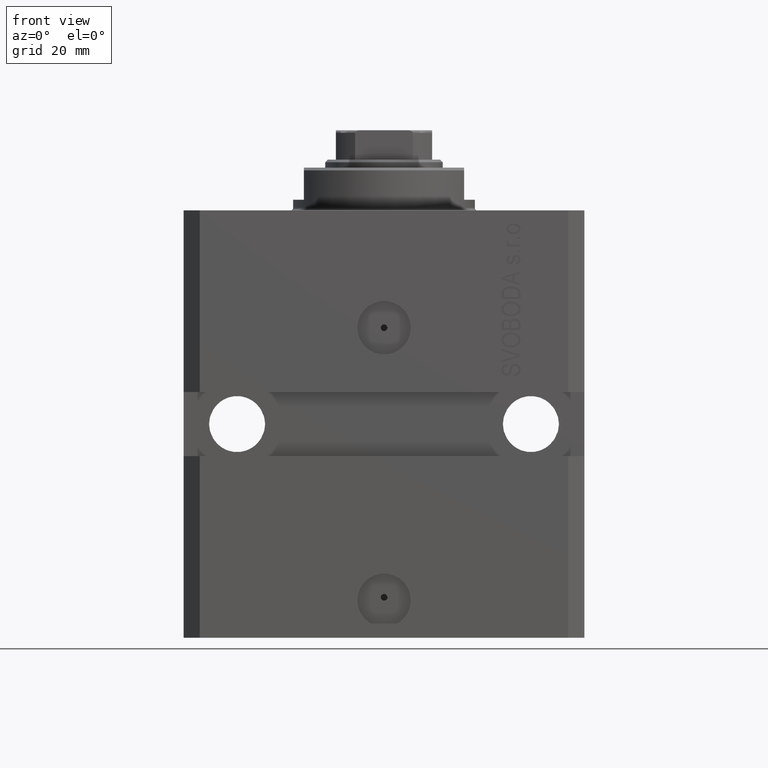
[diagram: clean part render]
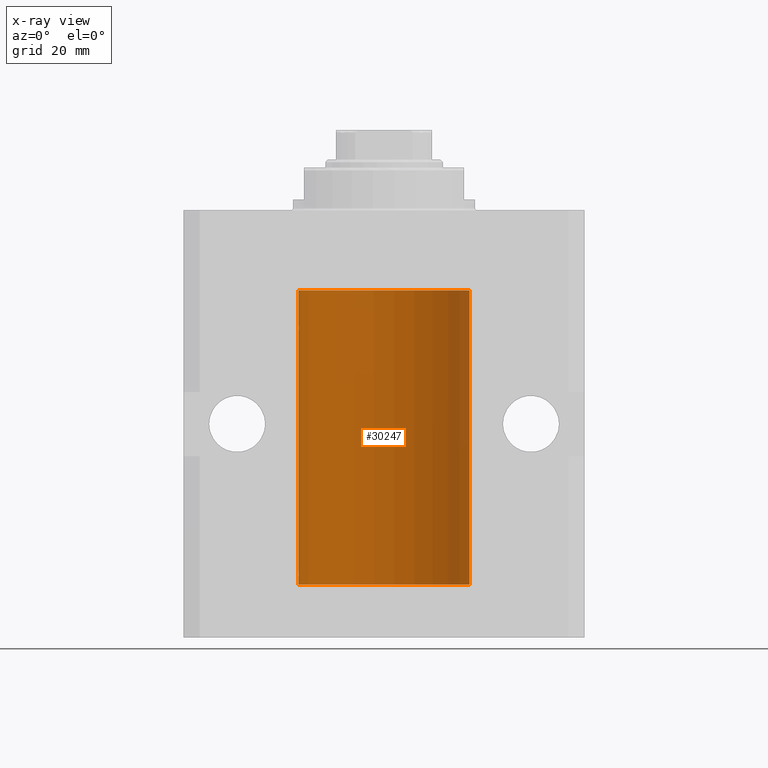
[diagram: x-ray — body ghosted, one internal face saturated and labeled with its STEP entity id]
A machine part, front view, then the same camera in x-ray: the body is ghosted and one INTERNAL B-rep face — a face not visible from any outside direction — is saturated and labeled: STEP entity #30247.
In plain terms, the highlighted cylindrical surface (partial cylindrical patch) has radius 16 mm, axis along (0, 0, 1).
Its self-contained STEP definition (entity closure, byte-faithful):
#1248 = CARTESIAN_POINT ( 'NONE',  ( -16.00000000000000000, 1.959434878635765131E-15, -70.09999999999999432 ) ) ;
#1643 = CARTESIAN_POINT ( 'NONE',  ( -15.99070653155267685, 0.5573233280232986475, -21.67348148680506625 ) ) ;
#2680 = CARTESIAN_POINT ( 'NONE',  ( -16.00000000000000000, 1.959434878635765131E-15, -70.09999999999999432 ) ) ;
#2798 = ORIENTED_EDGE ( 'NONE', *, *, #20978, .F. ) ;
#2998 = CARTESIAN_POINT ( 'NONE',  ( -16.00000000000013145, 3.685127046438747128E-13, -68.62500000000343903 ) ) ;
#3157 = B_SPLINE_CURVE_WITH_KNOTS ( 'NONE', 3,
 ( #27880, #21018, #31437, #41628, #13909, #17211, #38322, #16982, #9198, #35439, #10114, #31662, #24113, #2998 ),
 .UNSPECIFIED., .F., .F.,
 ( 4, 2, 2, 2, 2, 2, 4 ),
 ( 9.902737362640428303E-19, 0.0002442776652680895785, 0.0004885553305361781812, 0.0009771106610723552782, 0.001221388326340464752, 0.001465665991608574008, 0.001954221322144763465 ),
 .UNSPECIFIED. ) ;
#3888 = CARTESIAN_POINT ( 'NONE',  ( 16.00000000000000000, 0.000000000000000000, -70.09999999999999432 ) ) ;
#4114 = CARTESIAN_POINT ( 'NONE',  ( -16.00000000000000000, 1.643679961284177128E-16, -21.37499999999999645 ) ) ;
#4482 = CARTESIAN_POINT ( 'NONE',  ( -16.00000000000013145, 3.685127034031037939E-13, -22.62500000000341771 ) ) ;
#4795 = CARTESIAN_POINT ( 'NONE',  ( 16.00000000000000000, 0.000000000000000000, -70.09999999999999432 ) ) ;
#5443 = CARTESIAN_POINT ( 'NONE',  ( -15.99711699979842017, 0.3253759916140657737, -22.55856151623175521 ) ) ;
#5721 = LINE ( 'NONE', #31286, #41240 ) ;
#7083 = B_SPLINE_CURVE_WITH_KNOTS ( 'NONE', 3,
 ( #22747, #44736, #41186, #19652, #34084, #1643, #19895, #16324, #42356, #13247, #30779, #5443, #9911, #45203 ),
 .UNSPECIFIED., .F., .F.,
 ( 4, 2, 2, 2, 2, 2, 4 ),
 ( 1.597328219370744179E-19, 0.0002442776652680942405, 0.0004885553305361882643, 0.0009771106610723839011, 0.001221388326340481665, 0.001465665991608579430, 0.001954221322144767369 ),
 .UNSPECIFIED. ) ;
#7220 = DIRECTION ( 'NONE',  ( -0.000000000000000000, -0.000000000000000000, 1.000000000000000000 ) ) ;
#7988 = ORIENTED_EDGE ( 'NONE', *, *, #34527, .T. ) ;
#9198 = CARTESIAN_POINT ( 'NONE',  ( -15.98844267028591126, 0.6088369347963314970, -68.16324735024328163 ) ) ;
#9407 = DIRECTION ( 'NONE',  ( 1.000000000000000000, 0.000000000000000000, 0.000000000000000000 ) ) ;
#9713 = VERTEX_POINT ( 'NONE', #4482 ) ;
#9911 = CARTESIAN_POINT ( 'NONE',  ( -16.00000000000000000, 0.1631714642025800244, -22.62499999999985789 ) ) ;
#10114 = CARTESIAN_POINT ( 'NONE',  ( -15.99228023727723702, 0.5003781296993395911, -68.38347829554236057 ) ) ;
#10703 = VERTEX_POINT ( 'NONE', #34587 ) ;
#10971 = VERTEX_POINT ( 'NONE', #33366 ) ;
#11203 = DIRECTION ( 'NONE',  ( -0.000000000000000000, -0.000000000000000000, 1.000000000000000000 ) ) ;
#11423 = EDGE_CURVE ( 'NONE', #43093, #41072, #23887, .T. ) ;
#11683 = EDGE_LOOP ( 'NONE', ( #2798, #37562, #23799, #46484, #21652, #37977, #36486, #7988 ) ) ;
#12097 = VECTOR ( 'NONE', #13821, 1000.000000000000000 ) ;
#13247 = CARTESIAN_POINT ( 'NONE',  ( -15.99070426498503217, 0.5462220647145618058, -22.31460064614143590 ) ) ;
#13821 = DIRECTION ( 'NONE',  ( -0.000000000000000000, -0.000000000000000000, 1.000000000000000000 ) ) ;
#13909 = CARTESIAN_POINT ( 'NONE',  ( -15.99548640841682712, 0.3843705577988820732, -67.50046628527007897 ) ) ;
#14788 = FACE_OUTER_BOUND ( 'NONE', #11683, .T. ) ;
#15160 = CARTESIAN_POINT ( 'NONE',  ( 16.00000000000000000, 0.000000000000000000, -15.00000000000000000 ) ) ;
#16324 = CARTESIAN_POINT ( 'NONE',  ( -15.98778717651346071, 0.6250289588122140971, -22.08131585687052478 ) ) ;
#16957 = CARTESIAN_POINT ( 'NONE',  ( 0.000000000000000000, 0.000000000000000000, -15.00000000000000000 ) ) ;
#16982 = CARTESIAN_POINT ( 'NONE',  ( -15.98778717651346426, 0.6250289588122136530, -68.08131585687053189 ) ) ;
#17211 = CARTESIAN_POINT ( 'NONE',  ( -15.99070653155268040, 0.5573233280232966491, -67.67348148680505915 ) ) ;
#19652 = CARTESIAN_POINT ( 'NONE',  ( -15.99707730059171240, 0.3150375992092407373, -21.45402333202571654 ) ) ;
#19895 = CARTESIAN_POINT ( 'NONE',  ( -15.98779057735153941, 0.6249419637998100407, -21.83670145863507273 ) ) ;
#20250 = VERTEX_POINT ( 'NONE', #15160 ) ;
#20978 = EDGE_CURVE ( 'NONE', #41072, #35670, #38680, .T. ) ;
#21018 = CARTESIAN_POINT ( 'NONE',  ( -16.00000000000000711, 0.08259886010189028405, -67.37500000000001421 ) ) ;
#21652 = ORIENTED_EDGE ( 'NONE', *, *, #24844, .F. ) ;
#21669 = CARTESIAN_POINT ( 'NONE',  ( 0.000000000000000000, 0.000000000000000000, -70.09999999999999432 ) ) ;
#22747 = CARTESIAN_POINT ( 'NONE',  ( -16.00000000000000000, 1.643679961284177128E-16, -21.37499999999999645 ) ) ;
#23134 = AXIS2_PLACEMENT_3D ( 'NONE', #24063, #43427, #42726 ) ;
#23349 = CARTESIAN_POINT ( 'NONE',  ( -16.00000000000013145, 3.685127046438747128E-13, -68.62500000000343903 ) ) ;
#23799 = ORIENTED_EDGE ( 'NONE', *, *, #24807, .T. ) ;
#23887 = CIRCLE ( 'NONE', #23134, 16.00000000000000000 ) ;
#24063 = CARTESIAN_POINT ( 'NONE',  ( 0.000000000000000000, 0.000000000000000000, -70.09999999999999432 ) ) ;
#24113 = CARTESIAN_POINT ( 'NONE',  ( -15.99999999999998934, 0.1631714642025807183, -68.62499999999984368 ) ) ;
#24807 = EDGE_CURVE ( 'NONE', #43093, #20250, #43633, .T. ) ;
#24844 = EDGE_CURVE ( 'NONE', #30349, #10971, #44340, .T. ) ;
#26925 = DIRECTION ( 'NONE',  ( 0.000000000000000000, 0.000000000000000000, 1.000000000000000000 ) ) ;
#27231 = VECTOR ( 'NONE', #11203, 1000.000000000000000 ) ;
#27880 = CARTESIAN_POINT ( 'NONE',  ( -16.00000000000000000, -9.346608026143465119E-15, -67.37500000000000000 ) ) ;
#27919 = EDGE_CURVE ( 'NONE', #30349, #9713, #7083, .T. ) ;
#28238 = EDGE_CURVE ( 'NONE', #20250, #10971, #43962, .T. ) ;
#29593 = AXIS2_PLACEMENT_3D ( 'NONE', #21669, #7220, #36088 ) ;
#30247 = ADVANCED_FACE ( 'NONE', ( #14788 ), #35385, .F. ) ;
#30349 = VERTEX_POINT ( 'NONE', #4114 ) ;
#30779 = CARTESIAN_POINT ( 'NONE',  ( -15.99228023727724413, 0.5003781296993413674, -22.38347829554236057 ) ) ;
#31286 = CARTESIAN_POINT ( 'NONE',  ( -16.00000000000000000, 1.959434878635765131E-15, -70.09999999999999432 ) ) ;
#31437 = CARTESIAN_POINT ( 'NONE',  ( -15.99934216141748244, 0.1636497843296345067, -67.39126528029308361 ) ) ;
#31662 = CARTESIAN_POINT ( 'NONE',  ( -15.99711699979840951, 0.3253759916140645525, -68.55856151623176231 ) ) ;
#33366 = CARTESIAN_POINT ( 'NONE',  ( -16.00000000000000000, 1.959434878635765131E-15, -15.00000000000000000 ) ) ;
#34084 = CARTESIAN_POINT ( 'NONE',  ( -15.99548640841683067, 0.3843705577988847377, -21.50046628527008608 ) ) ;
#34527 = EDGE_CURVE ( 'NONE', #10703, #35670, #3157, .T. ) ;
#34587 = CARTESIAN_POINT ( 'NONE',  ( -16.00000000000000000, -9.346608026143465119E-15, -67.37500000000000000 ) ) ;
#35385 = CYLINDRICAL_SURFACE ( 'NONE', #29593, 16.00000000000000000 ) ;
#35439 = CARTESIAN_POINT ( 'NONE',  ( -15.99070426498502862, 0.5462220647145645813, -68.31460064614141459 ) ) ;
#35670 = VERTEX_POINT ( 'NONE', #23349 ) ;
#36088 = DIRECTION ( 'NONE',  ( 1.000000000000000000, 0.000000000000000000, 0.000000000000000000 ) ) ;
#36486 = ORIENTED_EDGE ( 'NONE', *, *, #42853, .F. ) ;
#37234 = DIRECTION ( 'NONE',  ( -0.000000000000000000, -0.000000000000000000, 1.000000000000000000 ) ) ;
#37562 = ORIENTED_EDGE ( 'NONE', *, *, #11423, .F. ) ;
#37977 = ORIENTED_EDGE ( 'NONE', *, *, #27919, .T. ) ;
#38322 = CARTESIAN_POINT ( 'NONE',  ( -15.98779057735153586, 0.6249419637998054888, -67.83670145863507628 ) ) ;
#38680 = LINE ( 'NONE', #2680, #12097 ) ;
#39897 = CARTESIAN_POINT ( 'NONE',  ( -16.00000000000000000, 1.959434878635765131E-15, -70.09999999999999432 ) ) ;
#41072 = VERTEX_POINT ( 'NONE', #39897 ) ;
#41186 = CARTESIAN_POINT ( 'NONE',  ( -15.99934216141748244, 0.1636497843296417787, -21.39126528029306229 ) ) ;
#41240 = VECTOR ( 'NONE', #45712, 1000.000000000000000 ) ;
#41628 = CARTESIAN_POINT ( 'NONE',  ( -15.99707730059171240, 0.3150375992092334654, -67.45402333202571299 ) ) ;
#42356 = CARTESIAN_POINT ( 'NONE',  ( -15.98844267028591482, 0.6088369347963316081, -22.16324735024328518 ) ) ;
#42726 = DIRECTION ( 'NONE',  ( 1.000000000000000000, 0.000000000000000000, 0.000000000000000000 ) ) ;
#42853 = EDGE_CURVE ( 'NONE', #10703, #9713, #5721, .T. ) ;
#43093 = VERTEX_POINT ( 'NONE', #3888 ) ;
#43210 = AXIS2_PLACEMENT_3D ( 'NONE', #16957, #26925, #9407 ) ;
#43427 = DIRECTION ( 'NONE',  ( 0.000000000000000000, 0.000000000000000000, 1.000000000000000000 ) ) ;
#43633 = LINE ( 'NONE', #4795, #27231 ) ;
#43962 = CIRCLE ( 'NONE', #43210, 16.00000000000000000 ) ;
#44340 = LINE ( 'NONE', #1248, #46117 ) ;
#44736 = CARTESIAN_POINT ( 'NONE',  ( -16.00000000000000711, 0.08259886010189904093, -21.37500000000000000 ) ) ;
#45203 = CARTESIAN_POINT ( 'NONE',  ( -16.00000000000013145, 3.685127034031037939E-13, -22.62500000000341771 ) ) ;
#45712 = DIRECTION ( 'NONE',  ( -0.000000000000000000, -0.000000000000000000, 1.000000000000000000 ) ) ;
#46117 = VECTOR ( 'NONE', #37234, 1000.000000000000000 ) ;
#46484 = ORIENTED_EDGE ( 'NONE', *, *, #28238, .T. ) ;